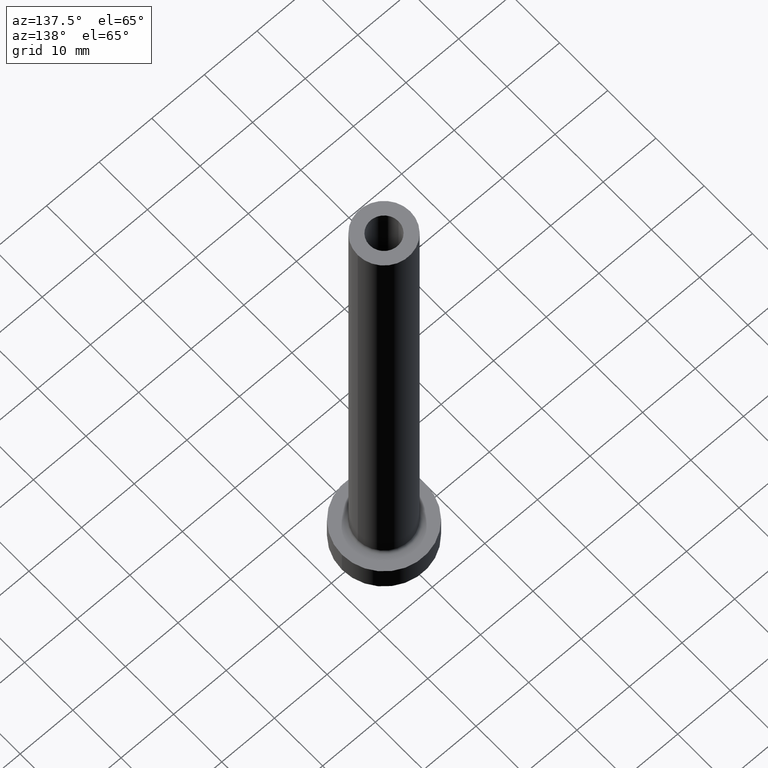
[diagram: clean part render]
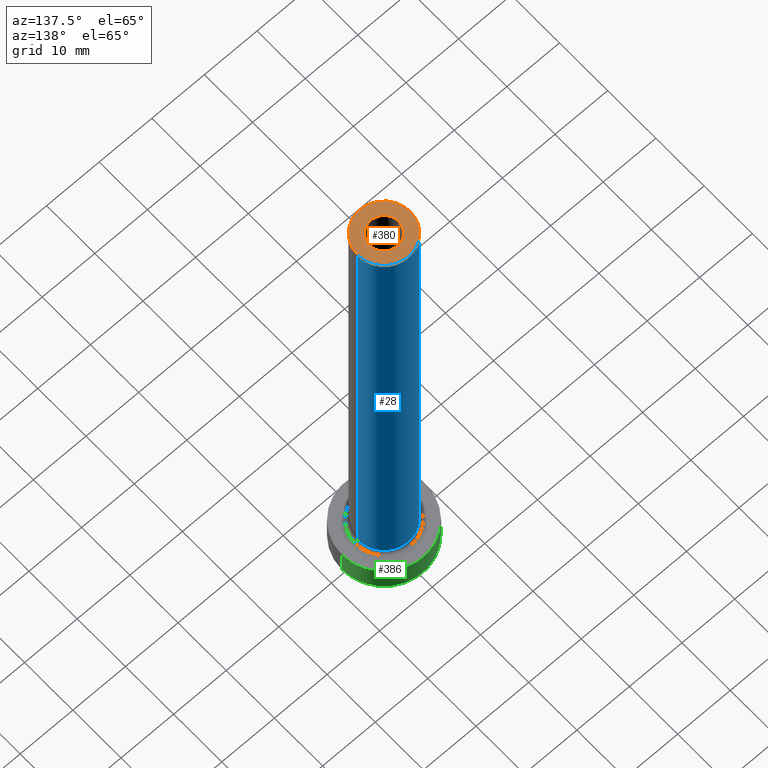
[diagram: same view with three faces highlighted in distinct colors, each labeled with its STEP entity id]
A machine part, auxiliary view with three faces highlighted in distinct colors.
Their STEP definitions:

[orange] entity #380 — the highlighted planar face has unit normal (0, 0, 1).
#3 = FACE_BOUND ( 'NONE', #30, .T. ) ;
#7 = DIRECTION ( 'NONE',  ( 1.000000000000000000, 0.000000000000000000, 0.000000000000000000 ) ) ;
#20 = CARTESIAN_POINT ( 'NONE',  ( 0.000000000000000000, 0.000000000000000000, 100.0000000000000000 ) ) ;
#30 = EDGE_LOOP ( 'NONE', ( #432, #356 ) ) ;
#40 = DIRECTION ( 'NONE',  ( 1.000000000000000000, 0.000000000000000000, -0.000000000000000000 ) ) ;
#45 = CIRCLE ( 'NONE', #238, 2.750000000000000000 ) ;
#47 = CARTESIAN_POINT ( 'NONE',  ( 0.000000000000000000, 0.000000000000000000, 100.0000000000000000 ) ) ;
#53 = EDGE_LOOP ( 'NONE', ( #314, #409 ) ) ;
#78 = VERTEX_POINT ( 'NONE', #375 ) ;
#122 = EDGE_CURVE ( 'NONE', #235, #183, #45, .T. ) ;
#135 = AXIS2_PLACEMENT_3D ( 'NONE', #47, #335, #145 ) ;
#138 = DIRECTION ( 'NONE',  ( 0.000000000000000000, 0.000000000000000000, 1.000000000000000000 ) ) ;
#143 = AXIS2_PLACEMENT_3D ( 'NONE', #210, #288, #7 ) ;
#145 = DIRECTION ( 'NONE',  ( 1.000000000000000000, 0.000000000000000000, 0.000000000000000000 ) ) ;
#158 = DIRECTION ( 'NONE',  ( 1.000000000000000000, 0.000000000000000000, 0.000000000000000000 ) ) ;
#173 = CARTESIAN_POINT ( 'NONE',  ( 2.750000000000000000, 3.367778697655220519E-16, 100.0000000000000000 ) ) ;
#183 = VERTEX_POINT ( 'NONE', #282 ) ;
#199 = EDGE_CURVE ( 'NONE', #78, #274, #321, .T. ) ;
#210 = CARTESIAN_POINT ( 'NONE',  ( 0.000000000000000000, 0.000000000000000000, 100.0000000000000000 ) ) ;
#235 = VERTEX_POINT ( 'NONE', #173 ) ;
#238 = AXIS2_PLACEMENT_3D ( 'NONE', #20, #263, #158 ) ;
#263 = DIRECTION ( 'NONE',  ( 0.000000000000000000, 0.000000000000000000, 1.000000000000000000 ) ) ;
#274 = VERTEX_POINT ( 'NONE', #326 ) ;
#276 = CARTESIAN_POINT ( 'NONE',  ( 0.000000000000000000, 0.000000000000000000, 100.0000000000000000 ) ) ;
#279 = DIRECTION ( 'NONE',  ( 1.000000000000000000, 0.000000000000000000, 0.000000000000000000 ) ) ;
#282 = CARTESIAN_POINT ( 'NONE',  ( -2.750000000000000000, 0.000000000000000000, 100.0000000000000000 ) ) ;
#288 = DIRECTION ( 'NONE',  ( 0.000000000000000000, 0.000000000000000000, 1.000000000000000000 ) ) ;
#300 = CIRCLE ( 'NONE', #135, 2.750000000000000000 ) ;
#314 = ORIENTED_EDGE ( 'NONE', *, *, #442, .T. ) ;
#317 = PLANE ( 'NONE',  #445 ) ;
#321 = CIRCLE ( 'NONE', #421, 5.000000000000000000 ) ;
#326 = CARTESIAN_POINT ( 'NONE',  ( -5.000000000000000000, 0.000000000000000000, 100.0000000000000000 ) ) ;
#335 = DIRECTION ( 'NONE',  ( 0.000000000000000000, 0.000000000000000000, 1.000000000000000000 ) ) ;
#349 = CARTESIAN_POINT ( 'NONE',  ( 0.000000000000000000, 0.000000000000000000, 100.0000000000000000 ) ) ;
#350 = EDGE_CURVE ( 'NONE', #183, #235, #300, .T. ) ;
#353 = FACE_OUTER_BOUND ( 'NONE', #53, .T. ) ;
#356 = ORIENTED_EDGE ( 'NONE', *, *, #122, .F. ) ;
#375 = CARTESIAN_POINT ( 'NONE',  ( 5.000000000000000000, 6.123233995736766282E-16, 100.0000000000000000 ) ) ;
#380 = ADVANCED_FACE ( 'NONE', ( #3, #353 ), #317, .T. ) ;
#389 = CIRCLE ( 'NONE', #143, 5.000000000000000000 ) ;
#409 = ORIENTED_EDGE ( 'NONE', *, *, #199, .T. ) ;
#412 = DIRECTION ( 'NONE',  ( 0.000000000000000000, 0.000000000000000000, 1.000000000000000000 ) ) ;
#421 = AXIS2_PLACEMENT_3D ( 'NONE', #276, #412, #279 ) ;
#432 = ORIENTED_EDGE ( 'NONE', *, *, #350, .F. ) ;
#442 = EDGE_CURVE ( 'NONE', #274, #78, #389, .T. ) ;
#445 = AXIS2_PLACEMENT_3D ( 'NONE', #349, #138, #40 ) ;

[blue] entity #28 — the highlighted cylindrical surface (edge-blend (fillet) strip) has radius 5 mm, axis along (-0, -0, -1).
#13 = CYLINDRICAL_SURFACE ( 'NONE', #416, 5.000000000000000000 ) ;
#16 = ORIENTED_EDGE ( 'NONE', *, *, #60, .T. ) ;
#28 = ADVANCED_FACE ( 'NONE', ( #36 ), #13, .T. ) ;
#36 = FACE_OUTER_BOUND ( 'NONE', #55, .T. ) ;
#55 = EDGE_LOOP ( 'NONE', ( #172, #337, #16, #294 ) ) ;
#56 = DIRECTION ( 'NONE',  ( -1.000000000000000000, 0.000000000000000000, 0.000000000000000000 ) ) ;
#60 = EDGE_CURVE ( 'NONE', #287, #202, #234, .T. ) ;
#69 = CARTESIAN_POINT ( 'NONE',  ( -5.000000000000000000, 0.000000000000000000, 100.0000000000000000 ) ) ;
#76 = CARTESIAN_POINT ( 'NONE',  ( 5.000000000000000000, 6.123233995736766282E-16, 5.500000000000005329 ) ) ;
#78 = VERTEX_POINT ( 'NONE', #375 ) ;
#85 = EDGE_CURVE ( 'NONE', #78, #287, #309, .T. ) ;
#89 = VECTOR ( 'NONE', #205, 1000.000000000000000 ) ;
#108 = LINE ( 'NONE', #69, #89 ) ;
#172 = ORIENTED_EDGE ( 'NONE', *, *, #199, .F. ) ;
#195 = CARTESIAN_POINT ( 'NONE',  ( 0.000000000000000000, 0.000000000000000000, 100.0000000000000000 ) ) ;
#199 = EDGE_CURVE ( 'NONE', #78, #274, #321, .T. ) ;
#202 = VERTEX_POINT ( 'NONE', #236 ) ;
#205 = DIRECTION ( 'NONE',  ( -0.000000000000000000, -0.000000000000000000, -1.000000000000000000 ) ) ;
#230 = DIRECTION ( 'NONE',  ( 0.000000000000000000, 0.000000000000000000, 1.000000000000000000 ) ) ;
#234 = CIRCLE ( 'NONE', #334, 5.000000000000000000 ) ;
#236 = CARTESIAN_POINT ( 'NONE',  ( -5.000000000000000000, 0.000000000000000000, 5.500000000000005329 ) ) ;
#237 = EDGE_CURVE ( 'NONE', #274, #202, #108, .T. ) ;
#274 = VERTEX_POINT ( 'NONE', #326 ) ;
#276 = CARTESIAN_POINT ( 'NONE',  ( 0.000000000000000000, 0.000000000000000000, 100.0000000000000000 ) ) ;
#279 = DIRECTION ( 'NONE',  ( 1.000000000000000000, 0.000000000000000000, 0.000000000000000000 ) ) ;
#287 = VERTEX_POINT ( 'NONE', #76 ) ;
#294 = ORIENTED_EDGE ( 'NONE', *, *, #237, .F. ) ;
#299 = CARTESIAN_POINT ( 'NONE',  ( 5.000000000000000000, 6.123233995736766282E-16, 100.0000000000000000 ) ) ;
#309 = LINE ( 'NONE', #299, #410 ) ;
#321 = CIRCLE ( 'NONE', #421, 5.000000000000000000 ) ;
#326 = CARTESIAN_POINT ( 'NONE',  ( -5.000000000000000000, 0.000000000000000000, 100.0000000000000000 ) ) ;
#334 = AXIS2_PLACEMENT_3D ( 'NONE', #374, #230, #364 ) ;
#337 = ORIENTED_EDGE ( 'NONE', *, *, #85, .T. ) ;
#364 = DIRECTION ( 'NONE',  ( 1.000000000000000000, 0.000000000000000000, 0.000000000000000000 ) ) ;
#374 = CARTESIAN_POINT ( 'NONE',  ( 0.000000000000000000, 0.000000000000000000, 5.500000000000005329 ) ) ;
#375 = CARTESIAN_POINT ( 'NONE',  ( 5.000000000000000000, 6.123233995736766282E-16, 100.0000000000000000 ) ) ;
#405 = DIRECTION ( 'NONE',  ( -0.000000000000000000, -0.000000000000000000, -1.000000000000000000 ) ) ;
#410 = VECTOR ( 'NONE', #437, 1000.000000000000000 ) ;
#412 = DIRECTION ( 'NONE',  ( 0.000000000000000000, 0.000000000000000000, 1.000000000000000000 ) ) ;
#416 = AXIS2_PLACEMENT_3D ( 'NONE', #195, #405, #56 ) ;
#421 = AXIS2_PLACEMENT_3D ( 'NONE', #276, #412, #279 ) ;
#437 = DIRECTION ( 'NONE',  ( -0.000000000000000000, -0.000000000000000000, -1.000000000000000000 ) ) ;

[green] entity #386 — the highlighted cylindrical surface (partial cylindrical patch) has radius 8 mm, axis along (-0, -0, -1).
#1 = CARTESIAN_POINT ( 'NONE',  ( 0.000000000000000000, 0.000000000000000000, 5.000000000000000000 ) ) ;
#15 = AXIS2_PLACEMENT_3D ( 'NONE', #98, #200, #345 ) ;
#25 = AXIS2_PLACEMENT_3D ( 'NONE', #291, #109, #111 ) ;
#26 = DIRECTION ( 'NONE',  ( -0.000000000000000000, -0.000000000000000000, -1.000000000000000000 ) ) ;
#37 = ORIENTED_EDGE ( 'NONE', *, *, #67, .T. ) ;
#38 = VECTOR ( 'NONE', #26, 1000.000000000000000 ) ;
#39 = VERTEX_POINT ( 'NONE', #262 ) ;
#43 = CARTESIAN_POINT ( 'NONE',  ( 8.000000000000000000, 9.797174393178825657E-16, 0.000000000000000000 ) ) ;
#67 = EDGE_CURVE ( 'NONE', #454, #434, #92, .T. ) ;
#87 = CARTESIAN_POINT ( 'NONE',  ( 8.000000000000000000, 9.797174393178825657E-16, 5.000000000000000000 ) ) ;
#92 = LINE ( 'NONE', #196, #38 ) ;
#98 = CARTESIAN_POINT ( 'NONE',  ( 0.000000000000000000, 0.000000000000000000, 5.000000000000000000 ) ) ;
#103 = DIRECTION ( 'NONE',  ( -0.000000000000000000, -0.000000000000000000, -1.000000000000000000 ) ) ;
#104 = VECTOR ( 'NONE', #280, 1000.000000000000000 ) ;
#106 = ORIENTED_EDGE ( 'NONE', *, *, #366, .T. ) ;
#109 = DIRECTION ( 'NONE',  ( 0.000000000000000000, 0.000000000000000000, 1.000000000000000000 ) ) ;
#111 = DIRECTION ( 'NONE',  ( 1.000000000000000000, 0.000000000000000000, 0.000000000000000000 ) ) ;
#116 = ORIENTED_EDGE ( 'NONE', *, *, #211, .F. ) ;
#196 = CARTESIAN_POINT ( 'NONE',  ( 8.000000000000000000, 9.797174393178825657E-16, 5.000000000000000000 ) ) ;
#200 = DIRECTION ( 'NONE',  ( 0.000000000000000000, 0.000000000000000000, 1.000000000000000000 ) ) ;
#211 = EDGE_CURVE ( 'NONE', #454, #403, #459, .T. ) ;
#244 = DIRECTION ( 'NONE',  ( -1.000000000000000000, 0.000000000000000000, 0.000000000000000000 ) ) ;
#262 = CARTESIAN_POINT ( 'NONE',  ( -8.000000000000000000, 0.000000000000000000, 0.000000000000000000 ) ) ;
#280 = DIRECTION ( 'NONE',  ( -0.000000000000000000, -0.000000000000000000, -1.000000000000000000 ) ) ;
#291 = CARTESIAN_POINT ( 'NONE',  ( 0.000000000000000000, 0.000000000000000000, 0.000000000000000000 ) ) ;
#318 = CARTESIAN_POINT ( 'NONE',  ( -8.000000000000000000, 0.000000000000000000, 5.000000000000000000 ) ) ;
#319 = CARTESIAN_POINT ( 'NONE',  ( -8.000000000000000000, 0.000000000000000000, 5.000000000000000000 ) ) ;
#324 = CYLINDRICAL_SURFACE ( 'NONE', #354, 8.000000000000000000 ) ;
#345 = DIRECTION ( 'NONE',  ( 1.000000000000000000, 0.000000000000000000, 0.000000000000000000 ) ) ;
#354 = AXIS2_PLACEMENT_3D ( 'NONE', #1, #103, #244 ) ;
#366 = EDGE_CURVE ( 'NONE', #434, #39, #436, .T. ) ;
#376 = EDGE_LOOP ( 'NONE', ( #116, #37, #106, #387 ) ) ;
#386 = ADVANCED_FACE ( 'NONE', ( #423 ), #324, .T. ) ;
#387 = ORIENTED_EDGE ( 'NONE', *, *, #392, .F. ) ;
#388 = LINE ( 'NONE', #318, #104 ) ;
#392 = EDGE_CURVE ( 'NONE', #403, #39, #388, .T. ) ;
#403 = VERTEX_POINT ( 'NONE', #319 ) ;
#423 = FACE_OUTER_BOUND ( 'NONE', #376, .T. ) ;
#434 = VERTEX_POINT ( 'NONE', #43 ) ;
#436 = CIRCLE ( 'NONE', #25, 8.000000000000000000 ) ;
#454 = VERTEX_POINT ( 'NONE', #87 ) ;
#459 = CIRCLE ( 'NONE', #15, 8.000000000000000000 ) ;